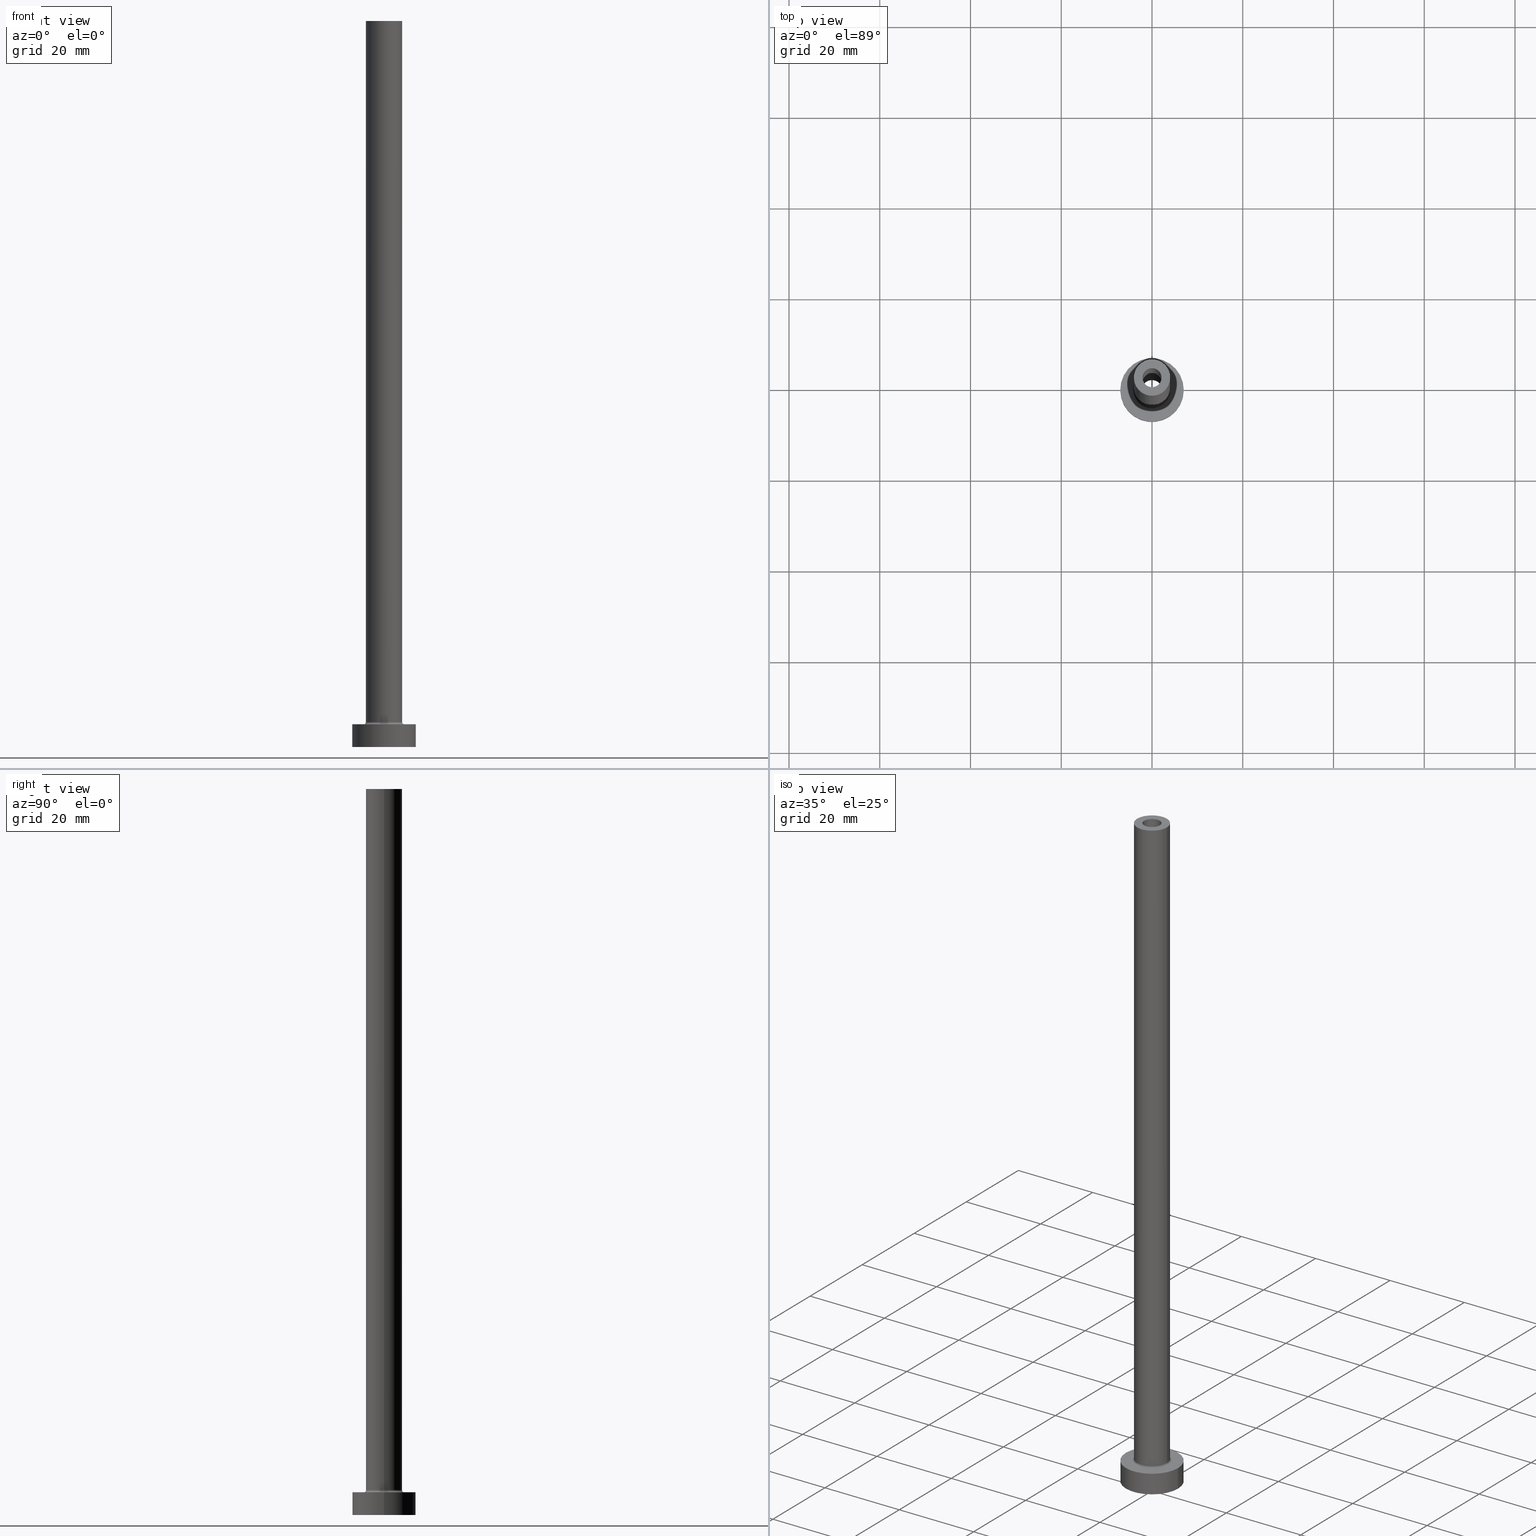
[diagram: canonical four-view strip — front | top / right | iso, engineering-drawing reading convention]
A machine part, canonical four-view strip (front | top / right | iso — engineering-drawing reading convention). The complete STEP part file that produces these views, byte-faithful:
ISO-10303-21;
HEADER;
FILE_DESCRIPTION (( 'STEP AP203' ),
    '1' );
FILE_NAME ('f486.STEP',
    '2023-02-13T11:07:08',
    ( '' ),
    ( '' ),
    'SwSTEP 2.0',
    'SolidWorks 2019',
    '' );
FILE_SCHEMA (( 'CONFIG_CONTROL_DESIGN' ));
ENDSEC;

DATA;
#1 = DIRECTION ( 'NONE',  ( 0.000000000000000000, 0.000000000000000000, 1.000000000000000000 ) ) ;
#2 =( NAMED_UNIT ( * ) SI_UNIT ( $, .STERADIAN. ) SOLID_ANGLE_UNIT ( ) );
#3 = ORIENTED_EDGE ( 'NONE', *, *, #124, .F. ) ;
#4 = EDGE_CURVE ( 'NONE', #60, #161, #90, .T. ) ;
#5 = ORIENTED_EDGE ( 'NONE', *, *, #404, .T. ) ;
#6 = DIRECTION ( 'NONE',  ( 0.000000000000000000, 0.000000000000000000, 1.000000000000000000 ) ) ;
#7 = EDGE_LOOP ( 'NONE', ( #340, #173 ) ) ;
#8 = AXIS2_PLACEMENT_3D ( 'NONE', #96, #85, #56 ) ;
#9 = ADVANCED_FACE ( 'NONE', ( #345 ), #22, .T. ) ;
#10 = ADVANCED_FACE ( 'NONE', ( #450 ), #128, .F. ) ;
#11 = DIRECTION ( 'NONE',  ( 1.000000000000000000, 0.000000000000000000, 0.000000000000000000 ) ) ;
#12 = EDGE_LOOP ( 'NONE', ( #386, #334, #247, #431 ) ) ;
#13 = CALENDAR_DATE ( 2023, 13, 2 ) ;
#14 = ORIENTED_EDGE ( 'NONE', *, *, #118, .F. ) ;
#15 = PERSON_AND_ORGANIZATION_ROLE ( 'design_supplier' ) ;
#16 = DIRECTION ( 'NONE',  ( -1.000000000000000000, 0.000000000000000000, 0.000000000000000000 ) ) ;
#17 = AXIS2_PLACEMENT_3D ( 'NONE', #246, #389, #207 ) ;
#18 = ORIENTED_EDGE ( 'NONE', *, *, #361, .T. ) ;
#19 = CARTESIAN_POINT ( 'NONE',  ( 7.000000000000000000, 8.572527594031473190E-16, 0.000000000000000000 ) ) ;
#20 = ORIENTED_EDGE ( 'NONE', *, *, #336, .F. ) ;
#21 = APPROVAL_STATUS ( 'not_yet_approved' ) ;
#22 = CYLINDRICAL_SURFACE ( 'NONE', #346, 4.000000000000000000 ) ;
#23 = DIRECTION ( 'NONE',  ( 1.000000000000000000, 0.000000000000000000, 0.000000000000000000 ) ) ;
#24 = DIRECTION ( 'NONE',  ( 1.000000000000000000, 0.000000000000000000, 0.000000000000000000 ) ) ;
#25 = DIRECTION ( 'NONE',  ( 1.000000000000000000, 0.000000000000000000, 0.000000000000000000 ) ) ;
#26 = DIRECTION ( 'NONE',  ( 0.000000000000000000, 0.000000000000000000, -1.000000000000000000 ) ) ;
#27 = CC_DESIGN_APPROVAL ( #415, ( #33 ) ) ;
#28 = DIRECTION ( 'NONE',  ( 0.000000000000000000, 0.000000000000000000, 1.000000000000000000 ) ) ;
#29 = EDGE_CURVE ( 'NONE', #161, #60, #80, .T. ) ;
#30 = CARTESIAN_POINT ( 'NONE',  ( -2.250000000000000000, 0.000000000000000000, 115.0000000000000000 ) ) ;
#31 = FACE_BOUND ( 'NONE', #331, .T. ) ;
#32 = CARTESIAN_POINT ( 'NONE',  ( 0.000000000000000000, 0.000000000000000000, 5.000000000000000000 ) ) ;
#33 = SECURITY_CLASSIFICATION ( '', '', #369 ) ;
#34 = ADVANCED_FACE ( 'NONE', ( #303 ), #89, .F. ) ;
#35 = DIRECTION ( 'NONE',  ( -1.000000000000000000, 0.000000000000000000, 0.000000000000000000 ) ) ;
#36 = AXIS2_PLACEMENT_3D ( 'NONE', #350, #167, #100 ) ;
#37 = VERTEX_POINT ( 'NONE', #348 ) ;
#38 = LINE ( 'NONE', #427, #402 ) ;
#39 = VERTEX_POINT ( 'NONE', #454 ) ;
#40 = APPLICATION_CONTEXT ( 'configuration controlled 3d designs of mechanical parts and assemblies' ) ;
#41 = DIRECTION ( 'NONE',  ( 0.000000000000000000, 0.000000000000000000, 1.000000000000000000 ) ) ;
#42 = DIRECTION ( 'NONE',  ( 0.000000000000000000, 0.000000000000000000, 1.000000000000000000 ) ) ;
#43 = ORIENTED_EDGE ( 'NONE', *, *, #312, .F. ) ;
#44 = EDGE_CURVE ( 'NONE', #289, #223, #204, .T. ) ;
#45 = PLANE ( 'NONE',  #355 ) ;
#46 = FACE_OUTER_BOUND ( 'NONE', #234, .T. ) ;
#47 = ORIENTED_EDGE ( 'NONE', *, *, #213, .T. ) ;
#48 = CIRCLE ( 'NONE', #158, 4.000000000000000000 ) ;
#49 = PERSON_AND_ORGANIZATION ( #99, #61 ) ;
#50 = AXIS2_PLACEMENT_3D ( 'NONE', #330, #286, #11 ) ;
#51 = DIRECTION ( 'NONE',  ( 1.000000000000000000, 0.000000000000000000, -0.000000000000000000 ) ) ;
#52 = APPROVAL_STATUS ( 'not_yet_approved' ) ;
#53 = ORIENTED_EDGE ( 'NONE', *, *, #249, .F. ) ;
#54 = CIRCLE ( 'NONE', #208, 2.250000000000000000 ) ;
#55 = CARTESIAN_POINT ( 'NONE',  ( 0.000000000000000000, 0.000000000000000000, 160.0000000000000000 ) ) ;
#56 = DIRECTION ( 'NONE',  ( 1.000000000000000000, 0.000000000000000000, 0.000000000000000000 ) ) ;
#57 = AXIS2_PLACEMENT_3D ( 'NONE', #154, #418, #413 ) ;
#58 = DATE_AND_TIME ( #371, #86 ) ;
#59 = CARTESIAN_POINT ( 'NONE',  ( -4.500000000000000888, 5.510910596163089556E-16, 5.500000000000005329 ) ) ;
#60 = VERTEX_POINT ( 'NONE', #283 ) ;
#61 = ORGANIZATION ( 'NEUR�EN�', 'NEUR�EN�', '' ) ;
#62 = EDGE_LOOP ( 'NONE', ( #254, #94 ) ) ;
#63 = DIRECTION ( 'NONE',  ( 1.000000000000000000, 0.000000000000000000, 0.000000000000000000 ) ) ;
#64 = EDGE_CURVE ( 'NONE', #226, #289, #116, .T. ) ;
#65 = ORIENTED_EDGE ( 'NONE', *, *, #343, .F. ) ;
#66 = APPLICATION_CONTEXT ( 'configuration controlled 3d designs of mechanical parts and assemblies' ) ;
#67 = AXIS2_PLACEMENT_3D ( 'NONE', #352, #313, #24 ) ;
#68 = CARTESIAN_POINT ( 'NONE',  ( 0.000000000000000000, 0.000000000000000000, 0.000000000000000000 ) ) ;
#69 = PRODUCT_RELATED_PRODUCT_CATEGORY ( 'detail', '', ( #236 ) ) ;
#70 = AXIS2_PLACEMENT_3D ( 'NONE', #98, #316, #455 ) ;
#71 = DIRECTION ( 'NONE',  ( 0.000000000000000000, 0.000000000000000000, -1.000000000000000000 ) ) ;
#72 = EDGE_LOOP ( 'NONE', ( #401, #142 ) ) ;
#73 = DIRECTION ( 'NONE',  ( 1.000000000000000000, 0.000000000000000000, 0.000000000000000000 ) ) ;
#74 = DIRECTION ( 'NONE',  ( 1.000000000000000000, 0.000000000000000000, 0.000000000000000000 ) ) ;
#75 = ORIENTED_EDGE ( 'NONE', *, *, #64, .T. ) ;
#76 = CARTESIAN_POINT ( 'NONE',  ( 0.000000000000000000, 0.000000000000000000, 0.000000000000000000 ) ) ;
#77 = EDGE_CURVE ( 'NONE', #264, #37, #359, .T. ) ;
#78 = ORIENTED_EDGE ( 'NONE', *, *, #103, .T. ) ;
#79 = PERSON_AND_ORGANIZATION ( #99, #61 ) ;
#80 = CIRCLE ( 'NONE', #8, 4.500000000000000888 ) ;
#81 = AXIS2_PLACEMENT_3D ( 'NONE', #172, #88, #443 ) ;
#82 = ORIENTED_EDGE ( 'NONE', *, *, #306, .T. ) ;
#83 = ADVANCED_FACE ( 'NONE', ( #164, #314 ), #163, .T. ) ;
#84 = CIRCLE ( 'NONE', #195, 0.5000000000000004441 ) ;
#85 = DIRECTION ( 'NONE',  ( -0.000000000000000000, -0.000000000000000000, -1.000000000000000000 ) ) ;
#86 = LOCAL_TIME ( 12, 7, 8.000000000000000000, #91 ) ;
#87 = PERSON_AND_ORGANIZATION_ROLE ( 'classification_officer' ) ;
#88 = DIRECTION ( 'NONE',  ( 0.000000000000000000, 0.000000000000000000, 1.000000000000000000 ) ) ;
#89 = CYLINDRICAL_SURFACE ( 'NONE', #36, 2.100000000000000089 ) ;
#90 = CIRCLE ( 'NONE', #339, 4.500000000000000888 ) ;
#91 = COORDINATED_UNIVERSAL_TIME_OFFSET ( 1, 0, .AHEAD. ) ;
#92 = DIRECTION ( 'NONE',  ( 0.000000000000000000, -1.000000000000000000, 0.000000000000000000 ) ) ;
#93 = CC_DESIGN_PERSON_AND_ORGANIZATION_ASSIGNMENT ( #399, #217, ( #236 ) ) ;
#94 = ORIENTED_EDGE ( 'NONE', *, *, #77, .T. ) ;
#95 = ADVANCED_FACE ( 'NONE', ( #459 ), #202, .T. ) ;
#96 = CARTESIAN_POINT ( 'NONE',  ( 0.000000000000000000, 0.000000000000000000, 5.000000000000000000 ) ) ;
#97 = LOCAL_TIME ( 12, 7, 8.000000000000000000, #338 ) ;
#98 = CARTESIAN_POINT ( 'NONE',  ( 0.000000000000000000, 0.000000000000000000, 5.000000000000000000 ) ) ;
#99 = PERSON ( 'NEUR�EN�', 'NEUR�EN�', 'NEUR�EN�', ('NEUR�EN�'), ('NEUR�EN�'), ('NEUR�EN�') ) ;
#100 = DIRECTION ( 'NONE',  ( -1.000000000000000000, 0.000000000000000000, 0.000000000000000000 ) ) ;
#101 = DIRECTION ( 'NONE',  ( -1.000000000000000000, 1.224646799147351482E-16, 0.000000000000000000 ) ) ;
#102 = DIRECTION ( 'NONE',  ( 1.000000000000000000, 0.000000000000000000, 0.000000000000000000 ) ) ;
#103 = EDGE_CURVE ( 'NONE', #220, #111, #277, .T. ) ;
#104 = CIRCLE ( 'NONE', #136, 2.100000000000000089 ) ;
#105 = FACE_OUTER_BOUND ( 'NONE', #7, .T. ) ;
#106 = DIRECTION ( 'NONE',  ( 0.000000000000000000, 0.000000000000000000, 1.000000000000000000 ) ) ;
#107 = CARTESIAN_POINT ( 'NONE',  ( 0.000000000000000000, 0.000000000000000000, 0.000000000000000000 ) ) ;
#108 = PLANE ( 'NONE',  #245 ) ;
#109 = ORIENTED_EDGE ( 'NONE', *, *, #124, .T. ) ;
#110 = CIRCLE ( 'NONE', #233, 2.250000000000000000 ) ;
#111 = VERTEX_POINT ( 'NONE', #242 ) ;
#112 = CYLINDRICAL_SURFACE ( 'NONE', #456, 7.000000000000000000 ) ;
#113 = PRODUCT_DEFINITION_FORMATION_WITH_SPECIFIED_SOURCE ( 'LIBOVOLN�', '', #236, .NOT_KNOWN. ) ;
#114 = DATE_AND_TIME ( #13, #294 ) ;
#115 = FACE_OUTER_BOUND ( 'NONE', #267, .T. ) ;
#116 = CIRCLE ( 'NONE', #298, 2.100000000000000089 ) ;
#117 = ORIENTED_EDGE ( 'NONE', *, *, #343, .T. ) ;
#118 = EDGE_CURVE ( 'NONE', #157, #429, #110, .T. ) ;
#119 = APPROVAL_DATE_TIME ( #442, #415 ) ;
#120 = VERTEX_POINT ( 'NONE', #320 ) ;
#121 = CARTESIAN_POINT ( 'NONE',  ( 0.000000000000000000, 0.000000000000000000, 5.500000000000005329 ) ) ;
#122 = DIRECTION ( 'NONE',  ( -0.000000000000000000, -0.000000000000000000, -1.000000000000000000 ) ) ;
#123 = VECTOR ( 'NONE', #317, 1000.000000000000000 ) ;
#124 = EDGE_CURVE ( 'NONE', #120, #39, #290, .T. ) ;
#125 = CARTESIAN_POINT ( 'NONE',  ( 7.000000000000000000, 8.572527594031473190E-16, 5.000000000000000000 ) ) ;
#126 = AXIS2_PLACEMENT_3D ( 'NONE', #184, #42, #210 ) ;
#127 = LINE ( 'NONE', #373, #433 ) ;
#128 = CYLINDRICAL_SURFACE ( 'NONE', #57, 2.100000000000000089 ) ;
#129 = VECTOR ( 'NONE', #269, 1000.000000000000000 ) ;
#130 = CARTESIAN_POINT ( 'NONE',  ( 0.000000000000000000, 0.000000000000000000, 5.500000000000005329 ) ) ;
#131 = EDGE_CURVE ( 'NONE', #396, #157, #420, .T. ) ;
#132 = LINE ( 'NONE', #281, #123 ) ;
#133 = DIRECTION ( 'NONE',  ( 0.000000000000000000, 0.000000000000000000, 1.000000000000000000 ) ) ;
#134 = DIRECTION ( 'NONE',  ( 0.000000000000000000, 0.000000000000000000, 1.000000000000000000 ) ) ;
#135 = DIRECTION ( 'NONE',  ( -1.000000000000000000, 0.000000000000000000, 0.000000000000000000 ) ) ;
#136 = AXIS2_PLACEMENT_3D ( 'NONE', #232, #307, #229 ) ;
#137 = FACE_OUTER_BOUND ( 'NONE', #62, .T. ) ;
#138 = ORIENTED_EDGE ( 'NONE', *, *, #166, .F. ) ;
#139 = ADVANCED_FACE ( 'NONE', ( #253, #137 ), #400, .T. ) ;
#140 = CIRCLE ( 'NONE', #67, 4.000000000000000000 ) ;
#141 = EDGE_LOOP ( 'NONE', ( #192, #78 ) ) ;
#142 = ORIENTED_EDGE ( 'NONE', *, *, #4, .T. ) ;
#143 = AXIS2_PLACEMENT_3D ( 'NONE', #55, #153, #261 ) ;
#144 = FACE_OUTER_BOUND ( 'NONE', #216, .T. ) ;
#145 = ORIENTED_EDGE ( 'NONE', *, *, #44, .T. ) ;
#146 = PERSON_AND_ORGANIZATION ( #99, #61 ) ;
#147 = ADVANCED_FACE ( 'NONE', ( #363 ), #328, .F. ) ;
#148 = EDGE_LOOP ( 'NONE', ( #259, #256, #376, #322 ) ) ;
#149 = LOCAL_TIME ( 12, 7, 8.000000000000000000, #409 ) ;
#150 = PERSON_AND_ORGANIZATION ( #99, #61 ) ;
#151 = ORIENTED_EDGE ( 'NONE', *, *, #336, .T. ) ;
#152 = APPROVAL_DATE_TIME ( #189, #278 ) ;
#153 = DIRECTION ( 'NONE',  ( -0.000000000000000000, -0.000000000000000000, -1.000000000000000000 ) ) ;
#154 = CARTESIAN_POINT ( 'NONE',  ( 0.000000000000000000, 0.000000000000000000, 160.0000000000000000 ) ) ;
#155 = EDGE_CURVE ( 'NONE', #196, #296, #385, .T. ) ;
#156 = LINE ( 'NONE', #446, #129 ) ;
#157 = VERTEX_POINT ( 'NONE', #251 ) ;
#158 = AXIS2_PLACEMENT_3D ( 'NONE', #428, #395, #74 ) ;
#159 = CARTESIAN_POINT ( 'NONE',  ( 0.000000000000000000, 0.000000000000000000, 121.3639610306789365 ) ) ;
#160 = ADVANCED_FACE ( 'NONE', ( #367, #46 ), #108, .F. ) ;
#161 = VERTEX_POINT ( 'NONE', #179 ) ;
#162 = DIRECTION ( 'NONE',  ( -1.000000000000000000, 0.000000000000000000, 0.000000000000000000 ) ) ;
#163 = PLANE ( 'NONE',  #70 ) ;
#164 = FACE_BOUND ( 'NONE', #72, .T. ) ;
#165 = EDGE_CURVE ( 'NONE', #39, #120, #48, .T. ) ;
#166 = EDGE_CURVE ( 'NONE', #429, #157, #422, .T. ) ;
#167 = DIRECTION ( 'NONE',  ( 0.000000000000000000, 0.000000000000000000, -1.000000000000000000 ) ) ;
#168 = LOCAL_TIME ( 12, 7, 8.000000000000000000, #335 ) ;
#169 = CARTESIAN_POINT ( 'NONE',  ( -2.250000000000000000, 0.000000000000000000, 0.000000000000000000 ) ) ;
#170 = DIRECTION ( 'NONE',  ( -0.000000000000000000, -0.000000000000000000, -1.000000000000000000 ) ) ;
#171 =( LENGTH_UNIT ( ) NAMED_UNIT ( * ) SI_UNIT ( .MILLI., .METRE. ) );
#172 = CARTESIAN_POINT ( 'NONE',  ( 0.000000000000000000, 0.000000000000000000, 115.0000000000000000 ) ) ;
#173 = ORIENTED_EDGE ( 'NONE', *, *, #353, .F. ) ;
#174 = CYLINDRICAL_SURFACE ( 'NONE', #397, 2.250000000000000000 ) ;
#175 = ORIENTED_EDGE ( 'NONE', *, *, #165, .T. ) ;
#176 = DIRECTION ( 'NONE',  ( 1.000000000000000000, 0.000000000000000000, 0.000000000000000000 ) ) ;
#177 = CC_DESIGN_APPROVAL ( #278, ( #319 ) ) ;
#178 = ORIENTED_EDGE ( 'NONE', *, *, #394, .T. ) ;
#179 = CARTESIAN_POINT ( 'NONE',  ( 4.500000000000000888, 0.000000000000000000, 5.000000000000002665 ) ) ;
#180 = AXIS2_PLACEMENT_3D ( 'NONE', #321, #1, #219 ) ;
#181 = ORIENTED_EDGE ( 'NONE', *, *, #238, .T. ) ;
#182 = COORDINATED_UNIVERSAL_TIME_OFFSET ( 1, 0, .AHEAD. ) ;
#183 = ADVANCED_FACE ( 'NONE', ( #144 ), #174, .F. ) ;
#184 = CARTESIAN_POINT ( 'NONE',  ( 0.000000000000000000, 0.000000000000000000, 5.500000000000005329 ) ) ;
#185 = ORIENTED_EDGE ( 'NONE', *, *, #312, .T. ) ;
#186 = APPROVAL_ROLE ( '' ) ;
#187 = ORIENTED_EDGE ( 'NONE', *, *, #306, .F. ) ;
#188 = VECTOR ( 'NONE', #366, 1000.000000000000000 ) ;
#189 = DATE_AND_TIME ( #305, #149 ) ;
#190 = DIRECTION ( 'NONE',  ( 0.000000000000000000, 0.000000000000000000, 1.000000000000000000 ) ) ;
#191 = AXIS2_PLACEMENT_3D ( 'NONE', #32, #423, #25 ) ;
#192 = ORIENTED_EDGE ( 'NONE', *, *, #249, .T. ) ;
#193 = CC_DESIGN_DATE_AND_TIME_ASSIGNMENT ( #58, #197, ( #319 ) ) ;
#194 = DESIGN_CONTEXT ( 'detailed design', #66, 'design' ) ;
#195 = AXIS2_PLACEMENT_3D ( 'NONE', #59, #344, #101 ) ;
#196 = VERTEX_POINT ( 'NONE', #292 ) ;
#197 = DATE_TIME_ROLE ( 'creation_date' ) ;
#198 = ORIENTED_EDGE ( 'NONE', *, *, #361, .F. ) ;
#199 = DIRECTION ( 'NONE',  ( 1.000000000000000000, 0.000000000000000000, 0.000000000000000000 ) ) ;
#200 = EDGE_LOOP ( 'NONE', ( #347, #291 ) ) ;
#201 = ADVANCED_FACE ( 'NONE', ( #436 ), #112, .T. ) ;
#202 = CYLINDRICAL_SURFACE ( 'NONE', #315, 7.000000000000000000 ) ;
#203 = CYLINDRICAL_SURFACE ( 'NONE', #218, 2.250000000000000000 ) ;
#204 = LINE ( 'NONE', #239, #448 ) ;
#205 = DIRECTION ( 'NONE',  ( 1.000000000000000000, 0.000000000000000000, 0.000000000000000000 ) ) ;
#206 = VECTOR ( 'NONE', #222, 1000.000000000000000 ) ;
#207 = DIRECTION ( 'NONE',  ( 1.000000000000000000, 0.000000000000000000, 0.000000000000000000 ) ) ;
#208 = AXIS2_PLACEMENT_3D ( 'NONE', #356, #6, #73 ) ;
#209 = DIRECTION ( 'NONE',  ( 0.000000000000000000, 0.000000000000000000, 1.000000000000000000 ) ) ;
#210 = DIRECTION ( 'NONE',  ( 1.000000000000000000, 0.000000000000000000, 0.000000000000000000 ) ) ;
#211 = ORIENTED_EDGE ( 'NONE', *, *, #4, .F. ) ;
#212 = CLOSED_SHELL ( 'NONE', ( #34, #387, #273, #9, #95, #201, #83, #457, #255, #139, #147, #183, #160, #10 ) ) ;
#213 = EDGE_CURVE ( 'NONE', #396, #362, #279, .T. ) ;
#214 = EDGE_LOOP ( 'NONE', ( #20, #3, #185, #211 ) ) ;
#215 = DIRECTION ( 'NONE',  ( 0.000000000000000000, 0.000000000000000000, 1.000000000000000000 ) ) ;
#216 = EDGE_LOOP ( 'NONE', ( #252, #47, #178, #374 ) ) ;
#217 = PERSON_AND_ORGANIZATION_ROLE ( 'design_owner' ) ;
#218 = AXIS2_PLACEMENT_3D ( 'NONE', #159, #26, #162 ) ;
#219 = DIRECTION ( 'NONE',  ( 1.000000000000000000, 0.000000000000000000, 0.000000000000000000 ) ) ;
#220 = VERTEX_POINT ( 'NONE', #125 ) ;
#221 = PERSON_AND_ORGANIZATION_ROLE ( 'creator' ) ;
#222 = DIRECTION ( 'NONE',  ( 0.000000000000000000, 0.000000000000000000, -1.000000000000000000 ) ) ;
#223 = VERTEX_POINT ( 'NONE', #333 ) ;
#224 = CIRCLE ( 'NONE', #378, 7.000000000000000000 ) ;
#225 = PERSON_AND_ORGANIZATION_ROLE ( 'creator' ) ;
#226 = VERTEX_POINT ( 'NONE', #263 ) ;
#227 = APPROVAL_ROLE ( '' ) ;
#228 = EDGE_CURVE ( 'NONE', #392, #223, #104, .T. ) ;
#229 = DIRECTION ( 'NONE',  ( 1.000000000000000000, 0.000000000000000000, 0.000000000000000000 ) ) ;
#230 = ORIENTED_EDGE ( 'NONE', *, *, #77, .F. ) ;
#231 =( GEOMETRIC_REPRESENTATION_CONTEXT ( 3 ) GLOBAL_UNCERTAINTY_ASSIGNED_CONTEXT ( ( #407 ) ) GLOBAL_UNIT_ASSIGNED_CONTEXT ( ( #171, #390, #2 ) ) REPRESENTATION_CONTEXT ( 'NONE', 'WORKASPACE' ) );
#232 = CARTESIAN_POINT ( 'NONE',  ( 0.000000000000000000, 0.000000000000000000, 115.0000000000000000 ) ) ;
#233 = AXIS2_PLACEMENT_3D ( 'NONE', #68, #170, #205 ) ;
#234 = EDGE_LOOP ( 'NONE', ( #368, #272 ) ) ;
#235 = DIRECTION ( 'NONE',  ( 0.000000000000000000, 0.000000000000000000, -1.000000000000000000 ) ) ;
#236 = PRODUCT ( 'f486', 'f486', '', ( #432 ) ) ;
#237 = AXIS2_PLACEMENT_3D ( 'NONE', #244, #134, #382 ) ;
#238 = EDGE_CURVE ( 'NONE', #226, #392, #127, .T. ) ;
#239 = CARTESIAN_POINT ( 'NONE',  ( 2.100000000000000089, 2.571758278209441464E-16, 160.0000000000000000 ) ) ;
#240 = DIRECTION ( 'NONE',  ( -0.000000000000000000, -0.000000000000000000, -1.000000000000000000 ) ) ;
#241 = CC_DESIGN_PERSON_AND_ORGANIZATION_ASSIGNMENT ( #265, #15, ( #113 ) ) ;
#242 = CARTESIAN_POINT ( 'NONE',  ( -7.000000000000000000, 0.000000000000000000, 5.000000000000000000 ) ) ;
#243 = CIRCLE ( 'NONE', #325, 2.100000000000000089 ) ;
#244 = CARTESIAN_POINT ( 'NONE',  ( 0.000000000000000000, 0.000000000000000000, 0.000000000000000000 ) ) ;
#245 = AXIS2_PLACEMENT_3D ( 'NONE', #360, #106, #248 ) ;
#246 = CARTESIAN_POINT ( 'NONE',  ( 0.000000000000000000, 0.000000000000000000, 160.0000000000000000 ) ) ;
#247 = ORIENTED_EDGE ( 'NONE', *, *, #353, .T. ) ;
#248 = DIRECTION ( 'NONE',  ( 1.000000000000000000, 0.000000000000000000, -0.000000000000000000 ) ) ;
#249 = EDGE_CURVE ( 'NONE', #111, #220, #224, .T. ) ;
#250 = APPROVAL_PERSON_ORGANIZATION ( #150, #411, #227 ) ;
#251 = CARTESIAN_POINT ( 'NONE',  ( 2.250000000000000000, 2.755455298081544285E-16, 0.000000000000000000 ) ) ;
#252 = ORIENTED_EDGE ( 'NONE', *, *, #131, .F. ) ;
#253 = FACE_BOUND ( 'NONE', #403, .T. ) ;
#254 = ORIENTED_EDGE ( 'NONE', *, *, #377, .T. ) ;
#255 = ADVANCED_FACE ( 'NONE', ( #115 ), #417, .T. ) ;
#256 = ORIENTED_EDGE ( 'NONE', *, *, #131, .T. ) ;
#257 = AXIS2_PLACEMENT_3D ( 'NONE', #76, #41, #176 ) ;
#258 = CARTESIAN_POINT ( 'NONE',  ( 0.000000000000000000, 0.000000000000000000, 5.000000000000000000 ) ) ;
#259 = ORIENTED_EDGE ( 'NONE', *, *, #437, .T. ) ;
#260 = DATE_TIME_ROLE ( 'classification_date' ) ;
#261 = DIRECTION ( 'NONE',  ( -1.000000000000000000, 0.000000000000000000, 0.000000000000000000 ) ) ;
#262 = SHAPE_DEFINITION_REPRESENTATION ( #416, #285 ) ;
#263 = CARTESIAN_POINT ( 'NONE',  ( -2.100000000000000089, 0.000000000000000000, 160.0000000000000000 ) ) ;
#264 = VERTEX_POINT ( 'NONE', #302 ) ;
#265 = PERSON_AND_ORGANIZATION ( #99, #61 ) ;
#266 = DIRECTION ( 'NONE',  ( 0.000000000000000000, 0.000000000000000000, 1.000000000000000000 ) ) ;
#267 = EDGE_LOOP ( 'NONE', ( #65, #364, #82, #175 ) ) ;
#268 = CC_DESIGN_SECURITY_CLASSIFICATION ( #33, ( #113 ) ) ;
#269 = DIRECTION ( 'NONE',  ( -0.000000000000000000, -0.000000000000000000, -1.000000000000000000 ) ) ;
#270 = AXIS2_PLACEMENT_3D ( 'NONE', #430, #215, #51 ) ;
#271 = TOROIDAL_SURFACE ( 'NONE', #332, 4.500000000000000888, 0.5000000000000000000 ) ;
#272 = ORIENTED_EDGE ( 'NONE', *, *, #213, .F. ) ;
#273 = ADVANCED_FACE ( 'NONE', ( #406 ), #271, .F. ) ;
#274 = CARTESIAN_POINT ( 'NONE',  ( 0.000000000000000000, 0.000000000000000000, 115.0000000000000000 ) ) ;
#275 = DIRECTION ( 'NONE',  ( 1.000000000000000000, 0.000000000000000000, 0.000000000000000000 ) ) ;
#276 = CARTESIAN_POINT ( 'NONE',  ( 0.000000000000000000, 0.000000000000000000, 160.0000000000000000 ) ) ;
#277 = CIRCLE ( 'NONE', #191, 7.000000000000000000 ) ;
#278 = APPROVAL ( #445, 'NEUR�EN�' ) ;
#279 = CIRCLE ( 'NONE', #81, 2.250000000000000000 ) ;
#280 = DIRECTION ( 'NONE',  ( -1.000000000000000000, 0.000000000000000000, 0.000000000000000000 ) ) ;
#281 = CARTESIAN_POINT ( 'NONE',  ( 4.000000000000000000, 4.898587196589412829E-16, 160.0000000000000000 ) ) ;
#282 = DIRECTION ( 'NONE',  ( 0.000000000000000000, 0.000000000000000000, -1.000000000000000000 ) ) ;
#283 = CARTESIAN_POINT ( 'NONE',  ( -4.500000000000000888, 5.510910596163088569E-16, 5.000000000000002665 ) ) ;
#284 = CC_DESIGN_DATE_AND_TIME_ASSIGNMENT ( #114, #260, ( #33 ) ) ;
#285 = ADVANCED_BREP_SHAPE_REPRESENTATION ( 'f486', ( #444, #257 ), #231 ) ;
#286 = DIRECTION ( 'NONE',  ( -0.000000000000000000, -0.000000000000000000, -1.000000000000000000 ) ) ;
#287 = EDGE_LOOP ( 'NONE', ( #293, #151, #323, #43 ) ) ;
#288 = DIRECTION ( 'NONE',  ( -0.000000000000000000, -0.000000000000000000, -1.000000000000000000 ) ) ;
#289 = VERTEX_POINT ( 'NONE', #375 ) ;
#290 = CIRCLE ( 'NONE', #351, 4.000000000000000000 ) ;
#291 = ORIENTED_EDGE ( 'NONE', *, *, #381, .T. ) ;
#292 = CARTESIAN_POINT ( 'NONE',  ( -7.000000000000000000, 0.000000000000000000, 0.000000000000000000 ) ) ;
#293 = ORIENTED_EDGE ( 'NONE', *, *, #165, .F. ) ;
#294 = LOCAL_TIME ( 12, 7, 8.000000000000000000, #182 ) ;
#295 = DIRECTION ( 'NONE',  ( 1.000000000000000000, 0.000000000000000000, 0.000000000000000000 ) ) ;
#296 = VERTEX_POINT ( 'NONE', #19 ) ;
#297 = CALENDAR_DATE ( 2023, 13, 2 ) ;
#298 = AXIS2_PLACEMENT_3D ( 'NONE', #461, #28, #102 ) ;
#299 = EDGE_LOOP ( 'NONE', ( #441, #53, #5, #408 ) ) ;
#300 = CC_DESIGN_PERSON_AND_ORGANIZATION_ASSIGNMENT ( #79, #225, ( #319 ) ) ;
#301 = APPROVAL_ROLE ( '' ) ;
#302 = CARTESIAN_POINT ( 'NONE',  ( 4.000000000000000000, 4.898587196589412829E-16, 160.0000000000000000 ) ) ;
#303 = FACE_OUTER_BOUND ( 'NONE', #434, .T. ) ;
#304 = DIRECTION ( 'NONE',  ( -0.000000000000000000, -0.000000000000000000, -1.000000000000000000 ) ) ;
#305 = CALENDAR_DATE ( 2023, 13, 2 ) ;
#306 = EDGE_CURVE ( 'NONE', #37, #39, #156, .T. ) ;
#307 = DIRECTION ( 'NONE',  ( 0.000000000000000000, 0.000000000000000000, 1.000000000000000000 ) ) ;
#308 = FACE_OUTER_BOUND ( 'NONE', #148, .T. ) ;
#309 = ORIENTED_EDGE ( 'NONE', *, *, #64, .F. ) ;
#310 = CARTESIAN_POINT ( 'NONE',  ( 2.250000000000000000, 2.755455298081544285E-16, 121.3639610306789365 ) ) ;
#311 = APPROVAL_PERSON_ORGANIZATION ( #379, #278, #301 ) ;
#312 = EDGE_CURVE ( 'NONE', #120, #161, #451, .T. ) ;
#313 = DIRECTION ( 'NONE',  ( 0.000000000000000000, 0.000000000000000000, 1.000000000000000000 ) ) ;
#314 = FACE_OUTER_BOUND ( 'NONE', #141, .T. ) ;
#315 = AXIS2_PLACEMENT_3D ( 'NONE', #354, #240, #280 ) ;
#316 = DIRECTION ( 'NONE',  ( 0.000000000000000000, 0.000000000000000000, 1.000000000000000000 ) ) ;
#317 = DIRECTION ( 'NONE',  ( -0.000000000000000000, -0.000000000000000000, -1.000000000000000000 ) ) ;
#318 = VECTOR ( 'NONE', #282, 1000.000000000000000 ) ;
#319 = PRODUCT_DEFINITION ( 'NEZN�M�', '', #113, #194 ) ;
#320 = CARTESIAN_POINT ( 'NONE',  ( 4.000000000000000000, 4.898587196589412829E-16, 5.500000000000005329 ) ) ;
#321 = CARTESIAN_POINT ( 'NONE',  ( 0.000000000000000000, 0.000000000000000000, 0.000000000000000000 ) ) ;
#322 = ORIENTED_EDGE ( 'NONE', *, *, #394, .F. ) ;
#323 = ORIENTED_EDGE ( 'NONE', *, *, #29, .F. ) ;
#324 = CC_DESIGN_PERSON_AND_ORGANIZATION_ASSIGNMENT ( #146, #221, ( #113 ) ) ;
#325 = AXIS2_PLACEMENT_3D ( 'NONE', #274, #460, #199 ) ;
#326 = APPLICATION_PROTOCOL_DEFINITION ( 'international standard', 'config_control_design', 1994, #40 ) ;
#327 = ORIENTED_EDGE ( 'NONE', *, *, #44, .F. ) ;
#328 = TOROIDAL_SURFACE ( 'NONE', #126, 4.500000000000000888, 0.5000000000000000000 ) ;
#329 = DIRECTION ( 'NONE',  ( 1.000000000000000000, 0.000000000000000000, -0.000000000000000000 ) ) ;
#330 = CARTESIAN_POINT ( 'NONE',  ( 0.000000000000000000, 0.000000000000000000, 0.000000000000000000 ) ) ;
#331 = EDGE_LOOP ( 'NONE', ( #138, #14 ) ) ;
#332 = AXIS2_PLACEMENT_3D ( 'NONE', #121, #266, #412 ) ;
#333 = CARTESIAN_POINT ( 'NONE',  ( 2.100000000000000089, 2.571758278209441464E-16, 115.0000000000000000 ) ) ;
#334 = ORIENTED_EDGE ( 'NONE', *, *, #425, .T. ) ;
#335 = COORDINATED_UNIVERSAL_TIME_OFFSET ( 1, 0, .AHEAD. ) ;
#336 = EDGE_CURVE ( 'NONE', #39, #60, #84, .T. ) ;
#337 = CARTESIAN_POINT ( 'NONE',  ( 0.000000000000000000, 0.000000000000000000, 160.0000000000000000 ) ) ;
#338 = COORDINATED_UNIVERSAL_TIME_OFFSET ( 1, 0, .AHEAD. ) ;
#339 = AXIS2_PLACEMENT_3D ( 'NONE', #452, #304, #23 ) ;
#340 = ORIENTED_EDGE ( 'NONE', *, *, #155, .F. ) ;
#341 = APPLICATION_PROTOCOL_DEFINITION ( 'international standard', 'config_control_design', 1994, #66 ) ;
#342 = DIRECTION ( 'NONE',  ( 0.000000000000000000, 0.000000000000000000, -1.000000000000000000 ) ) ;
#343 = EDGE_CURVE ( 'NONE', #264, #120, #132, .T. ) ;
#344 = DIRECTION ( 'NONE',  ( 1.224646799147353207E-16, 1.000000000000000000, -0.000000000000000000 ) ) ;
#345 = FACE_OUTER_BOUND ( 'NONE', #380, .T. ) ;
#346 = AXIS2_PLACEMENT_3D ( 'NONE', #337, #122, #16 ) ;
#347 = ORIENTED_EDGE ( 'NONE', *, *, #228, .T. ) ;
#348 = CARTESIAN_POINT ( 'NONE',  ( -4.000000000000000000, 0.000000000000000000, 160.0000000000000000 ) ) ;
#349 = LINE ( 'NONE', #458, #318 ) ;
#350 = CARTESIAN_POINT ( 'NONE',  ( 0.000000000000000000, 0.000000000000000000, 160.0000000000000000 ) ) ;
#351 = AXIS2_PLACEMENT_3D ( 'NONE', #130, #133, #275 ) ;
#352 = CARTESIAN_POINT ( 'NONE',  ( 0.000000000000000000, 0.000000000000000000, 160.0000000000000000 ) ) ;
#353 = EDGE_CURVE ( 'NONE', #296, #196, #365, .T. ) ;
#354 = CARTESIAN_POINT ( 'NONE',  ( 0.000000000000000000, 0.000000000000000000, 5.000000000000000000 ) ) ;
#355 = AXIS2_PLACEMENT_3D ( 'NONE', #107, #209, #329 ) ;
#356 = CARTESIAN_POINT ( 'NONE',  ( 0.000000000000000000, 0.000000000000000000, 115.0000000000000000 ) ) ;
#357 = DIRECTION ( 'NONE',  ( -0.000000000000000000, -0.000000000000000000, -1.000000000000000000 ) ) ;
#358 = ORIENTED_EDGE ( 'NONE', *, *, #381, .F. ) ;
#359 = CIRCLE ( 'NONE', #17, 4.000000000000000000 ) ;
#360 = CARTESIAN_POINT ( 'NONE',  ( 0.000000000000000000, 0.000000000000000000, 115.0000000000000000 ) ) ;
#361 = EDGE_CURVE ( 'NONE', #289, #226, #384, .T. ) ;
#362 = VERTEX_POINT ( 'NONE', #30 ) ;
#363 = FACE_OUTER_BOUND ( 'NONE', #214, .T. ) ;
#364 = ORIENTED_EDGE ( 'NONE', *, *, #377, .F. ) ;
#365 = CIRCLE ( 'NONE', #237, 7.000000000000000000 ) ;
#366 = DIRECTION ( 'NONE',  ( -0.000000000000000000, -0.000000000000000000, -1.000000000000000000 ) ) ;
#367 = FACE_BOUND ( 'NONE', #200, .T. ) ;
#368 = ORIENTED_EDGE ( 'NONE', *, *, #437, .F. ) ;
#369 = SECURITY_CLASSIFICATION_LEVEL ( 'unclassified' ) ;
#370 = EDGE_LOOP ( 'NONE', ( #327, #18, #181, #358 ) ) ;
#371 = CALENDAR_DATE ( 2023, 13, 2 ) ;
#372 = DATE_AND_TIME ( #447, #97 ) ;
#373 = CARTESIAN_POINT ( 'NONE',  ( -2.100000000000000089, 0.000000000000000000, 160.0000000000000000 ) ) ;
#374 = ORIENTED_EDGE ( 'NONE', *, *, #166, .T. ) ;
#375 = CARTESIAN_POINT ( 'NONE',  ( 2.100000000000000089, 2.571758278209441464E-16, 160.0000000000000000 ) ) ;
#376 = ORIENTED_EDGE ( 'NONE', *, *, #118, .T. ) ;
#377 = EDGE_CURVE ( 'NONE', #37, #264, #140, .T. ) ;
#378 = AXIS2_PLACEMENT_3D ( 'NONE', #449, #190, #295 ) ;
#379 = PERSON_AND_ORGANIZATION ( #99, #61 ) ;
#380 = EDGE_LOOP ( 'NONE', ( #230, #117, #109, #187 ) ) ;
#381 = EDGE_CURVE ( 'NONE', #223, #392, #243, .T. ) ;
#382 = DIRECTION ( 'NONE',  ( 1.000000000000000000, 0.000000000000000000, 0.000000000000000000 ) ) ;
#383 = CARTESIAN_POINT ( 'NONE',  ( -2.100000000000000089, 0.000000000000000000, 115.0000000000000000 ) ) ;
#384 = CIRCLE ( 'NONE', #439, 2.100000000000000089 ) ;
#385 = CIRCLE ( 'NONE', #180, 7.000000000000000000 ) ;
#386 = ORIENTED_EDGE ( 'NONE', *, *, #103, .F. ) ;
#387 = ADVANCED_FACE ( 'NONE', ( #308 ), #203, .F. ) ;
#388 = AXIS2_PLACEMENT_3D ( 'NONE', #414, #92, #235 ) ;
#389 = DIRECTION ( 'NONE',  ( 0.000000000000000000, 0.000000000000000000, 1.000000000000000000 ) ) ;
#390 =( NAMED_UNIT ( * ) PLANE_ANGLE_UNIT ( ) SI_UNIT ( $, .RADIAN. ) );
#391 = CARTESIAN_POINT ( 'NONE',  ( 0.000000000000000000, 0.000000000000000000, 121.3639610306789365 ) ) ;
#392 = VERTEX_POINT ( 'NONE', #383 ) ;
#393 = LINE ( 'NONE', #435, #188 ) ;
#394 = EDGE_CURVE ( 'NONE', #362, #429, #349, .T. ) ;
#395 = DIRECTION ( 'NONE',  ( 0.000000000000000000, 0.000000000000000000, 1.000000000000000000 ) ) ;
#396 = VERTEX_POINT ( 'NONE', #424 ) ;
#397 = AXIS2_PLACEMENT_3D ( 'NONE', #391, #71, #135 ) ;
#398 = ORIENTED_EDGE ( 'NONE', *, *, #238, .F. ) ;
#399 = PERSON_AND_ORGANIZATION ( #99, #61 ) ;
#400 = PLANE ( 'NONE',  #270 ) ;
#401 = ORIENTED_EDGE ( 'NONE', *, *, #29, .T. ) ;
#402 = VECTOR ( 'NONE', #288, 1000.000000000000000 ) ;
#403 = EDGE_LOOP ( 'NONE', ( #309, #198 ) ) ;
#404 = EDGE_CURVE ( 'NONE', #111, #196, #393, .T. ) ;
#405 = PERSON_AND_ORGANIZATION ( #99, #61 ) ;
#406 = FACE_OUTER_BOUND ( 'NONE', #287, .T. ) ;
#407 = UNCERTAINTY_MEASURE_WITH_UNIT (LENGTH_MEASURE( 1.000000000000000082E-05 ), #171, 'distance_accuracy_value', 'NONE');
#408 = ORIENTED_EDGE ( 'NONE', *, *, #155, .T. ) ;
#409 = COORDINATED_UNIVERSAL_TIME_OFFSET ( 1, 0, .AHEAD. ) ;
#410 = CC_DESIGN_APPROVAL ( #411, ( #113 ) ) ;
#411 = APPROVAL ( #21, 'NEUR�EN�' ) ;
#412 = DIRECTION ( 'NONE',  ( 1.000000000000000000, 0.000000000000000000, 0.000000000000000000 ) ) ;
#413 = DIRECTION ( 'NONE',  ( -1.000000000000000000, 0.000000000000000000, 0.000000000000000000 ) ) ;
#414 = CARTESIAN_POINT ( 'NONE',  ( 4.500000000000000888, 0.000000000000000000, 5.500000000000005329 ) ) ;
#415 = APPROVAL ( #52, 'NEUR�EN�' ) ;
#416 = PRODUCT_DEFINITION_SHAPE ( 'NONE', 'NONE',  #319 ) ;
#417 = CYLINDRICAL_SURFACE ( 'NONE', #143, 4.000000000000000000 ) ;
#418 = DIRECTION ( 'NONE',  ( 0.000000000000000000, 0.000000000000000000, -1.000000000000000000 ) ) ;
#419 = APPROVAL_PERSON_ORGANIZATION ( #405, #415, #186 ) ;
#420 = LINE ( 'NONE', #310, #206 ) ;
#421 = DIRECTION ( 'NONE',  ( 0.000000000000000000, 0.000000000000000000, 1.000000000000000000 ) ) ;
#422 = CIRCLE ( 'NONE', #50, 2.250000000000000000 ) ;
#423 = DIRECTION ( 'NONE',  ( 0.000000000000000000, 0.000000000000000000, 1.000000000000000000 ) ) ;
#424 = CARTESIAN_POINT ( 'NONE',  ( 2.250000000000000000, 2.755455298081544285E-16, 115.0000000000000000 ) ) ;
#425 = EDGE_CURVE ( 'NONE', #220, #296, #38, .T. ) ;
#426 = DIRECTION ( 'NONE',  ( 0.000000000000000000, 0.000000000000000000, -1.000000000000000000 ) ) ;
#427 = CARTESIAN_POINT ( 'NONE',  ( 7.000000000000000000, 8.572527594031473190E-16, 5.000000000000000000 ) ) ;
#428 = CARTESIAN_POINT ( 'NONE',  ( 0.000000000000000000, 0.000000000000000000, 5.500000000000005329 ) ) ;
#429 = VERTEX_POINT ( 'NONE', #169 ) ;
#430 = CARTESIAN_POINT ( 'NONE',  ( 0.000000000000000000, 0.000000000000000000, 160.0000000000000000 ) ) ;
#431 = ORIENTED_EDGE ( 'NONE', *, *, #404, .F. ) ;
#432 = MECHANICAL_CONTEXT ( 'NONE', #40, 'mechanical' ) ;
#433 = VECTOR ( 'NONE', #342, 1000.000000000000000 ) ;
#434 = EDGE_LOOP ( 'NONE', ( #75, #145, #438, #398 ) ) ;
#435 = CARTESIAN_POINT ( 'NONE',  ( -7.000000000000000000, 0.000000000000000000, 5.000000000000000000 ) ) ;
#436 = FACE_OUTER_BOUND ( 'NONE', #299, .T. ) ;
#437 = EDGE_CURVE ( 'NONE', #362, #396, #54, .T. ) ;
#438 = ORIENTED_EDGE ( 'NONE', *, *, #228, .F. ) ;
#439 = AXIS2_PLACEMENT_3D ( 'NONE', #276, #421, #63 ) ;
#440 = APPROVAL_DATE_TIME ( #372, #411 ) ;
#441 = ORIENTED_EDGE ( 'NONE', *, *, #425, .F. ) ;
#442 = DATE_AND_TIME ( #297, #168 ) ;
#443 = DIRECTION ( 'NONE',  ( 1.000000000000000000, 0.000000000000000000, 0.000000000000000000 ) ) ;
#444 = MANIFOLD_SOLID_BREP ( 'Odebrat vysunut�m4', #212 ) ;
#445 = APPROVAL_STATUS ( 'not_yet_approved' ) ;
#446 = CARTESIAN_POINT ( 'NONE',  ( -4.000000000000000000, 0.000000000000000000, 160.0000000000000000 ) ) ;
#447 = CALENDAR_DATE ( 2023, 13, 2 ) ;
#448 = VECTOR ( 'NONE', #426, 1000.000000000000000 ) ;
#449 = CARTESIAN_POINT ( 'NONE',  ( 0.000000000000000000, 0.000000000000000000, 5.000000000000000000 ) ) ;
#450 = FACE_OUTER_BOUND ( 'NONE', #370, .T. ) ;
#451 = CIRCLE ( 'NONE', #388, 0.5000000000000004441 ) ;
#452 = CARTESIAN_POINT ( 'NONE',  ( 0.000000000000000000, 0.000000000000000000, 5.000000000000000000 ) ) ;
#453 = CC_DESIGN_PERSON_AND_ORGANIZATION_ASSIGNMENT ( #49, #87, ( #33 ) ) ;
#454 = CARTESIAN_POINT ( 'NONE',  ( -4.000000000000000000, 0.000000000000000000, 5.500000000000005329 ) ) ;
#455 = DIRECTION ( 'NONE',  ( 1.000000000000000000, 0.000000000000000000, -0.000000000000000000 ) ) ;
#456 = AXIS2_PLACEMENT_3D ( 'NONE', #258, #357, #35 ) ;
#457 = ADVANCED_FACE ( 'NONE', ( #31, #105 ), #45, .F. ) ;
#458 = CARTESIAN_POINT ( 'NONE',  ( -2.250000000000000000, 0.000000000000000000, 121.3639610306789365 ) ) ;
#459 = FACE_OUTER_BOUND ( 'NONE', #12, .T. ) ;
#460 = DIRECTION ( 'NONE',  ( 0.000000000000000000, 0.000000000000000000, 1.000000000000000000 ) ) ;
#461 = CARTESIAN_POINT ( 'NONE',  ( 0.000000000000000000, 0.000000000000000000, 160.0000000000000000 ) ) ;
ENDSEC;
END-ISO-10303-21;
